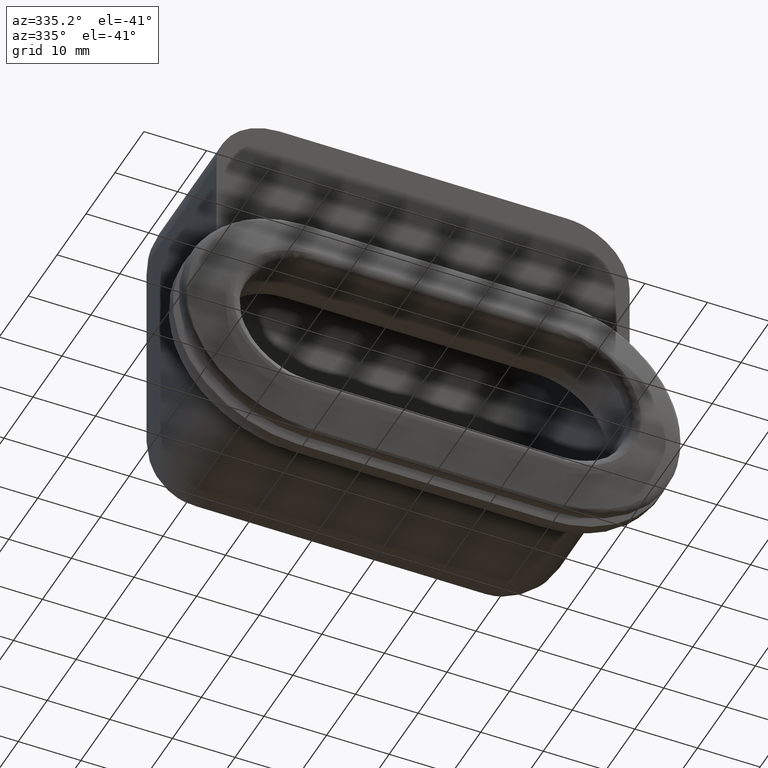
[diagram: clean part render]
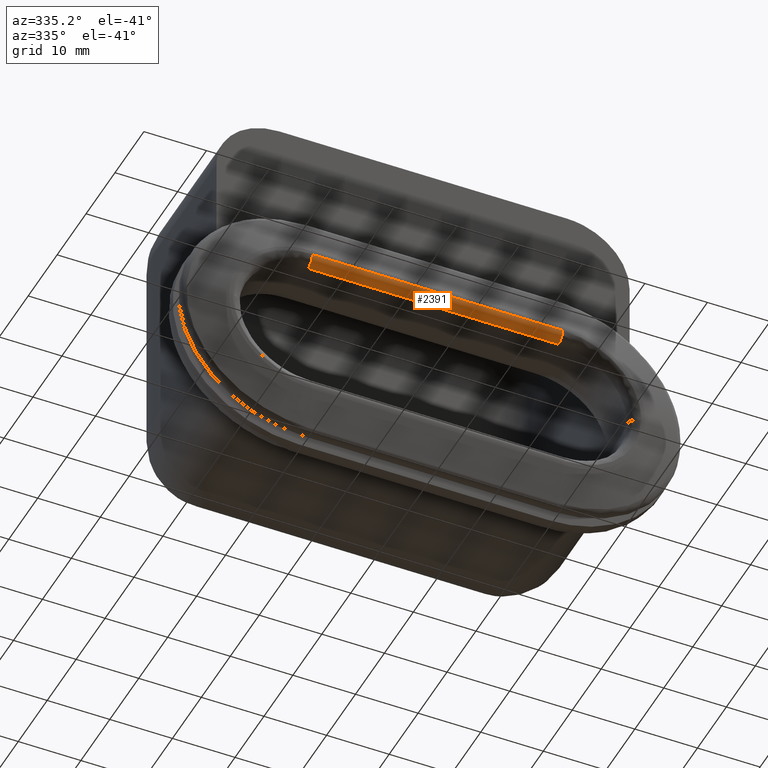
[diagram: same view with one face highlighted and labeled with its STEP entity id]
A machine part, auxiliary view. The second image highlights one B-rep face of the part: STEP entity #2391.
In plain terms, the highlighted face is a freeform B-spline surface patch.
Its self-contained STEP definition (entity closure, byte-faithful):
#2010=CARTESIAN_POINT('',(-20.0,1.500000000000000,11.0));
#2011=VERTEX_POINT('',#2010);
#2012=CARTESIAN_POINT('',(-20.0,0.0,12.500000000000000));
#2013=VERTEX_POINT('',#2012);
#2014=CARTESIAN_POINT('',(-20.0,1.500000000000000,11.0));
#2015=CARTESIAN_POINT('',(-19.999999999999996,0.0,11.000000000000002));
#2016=CARTESIAN_POINT('',(-20.0,0.0,12.500000000000000));
#2024=(BOUNDED_CURVE()B_SPLINE_CURVE(2,(#2014,#2015,#2016),.UNSPECIFIED.,.F.,.U.)CURVE()GEOMETRIC_REPRESENTATION_ITEM()QUASI_UNIFORM_CURVE()RATIONAL_B_SPLINE_CURVE((1.0,0.707106781186548,1.0))REPRESENTATION_ITEM(''));
#2025=EDGE_CURVE('',#2011,#2013,#2024,.T.);
#2345=CARTESIAN_POINT('',(21.0,0.000514012536664,12.539265422461810));
#2346=CARTESIAN_POINT('',(-21.024999999999999,0.000514012536664,12.539265422461810));
#2347=CARTESIAN_POINT('',(20.999999999999993,-0.042738390249391,10.887522799167924));
#2348=CARTESIAN_POINT('',(-21.024999999999995,-0.042738390249391,10.887522799167924));
#2349=CARTESIAN_POINT('',(21.000000000000004,1.605480113438977,11.003713280928787));
#2350=CARTESIAN_POINT('',(-21.024999999999999,1.605480113438977,11.003713280928787));
#2358=(BOUNDED_SURFACE()B_SPLINE_SURFACE(1,2,((#2345,#2347,#2349),(#2346,#2348,#2350)),.UNSPECIFIED.,.F.,.F.,.U.)B_SPLINE_SURFACE_WITH_KNOTS((2,2),(3,3),(0.0,42.025000000000013),(0.0,2.656713516132538),.UNSPECIFIED.)GEOMETRIC_REPRESENTATION_ITEM()RATIONAL_B_SPLINE_SURFACE(((1.0,0.670944223154768,0.996392648609106),(1.0,0.670944223154768,0.996392648609106)))REPRESENTATION_ITEM('')SURFACE());
#2359=CARTESIAN_POINT('',(20.0,1.500000000000000,11.0));
#2360=VERTEX_POINT('',#2359);
#2361=CARTESIAN_POINT('',(20.0,0.0,12.500000000000000));
#2362=VERTEX_POINT('',#2361);
#2363=CARTESIAN_POINT('',(20.0,1.500000000000000,11.0));
#2364=CARTESIAN_POINT('',(19.999999999999996,0.878679656440319,10.999999999999996));
#2365=CARTESIAN_POINT('',(20.0,0.439339828220144,11.439339828220159));
#2366=CARTESIAN_POINT('',(19.999999999999996,-5.399327E-014,11.878679656440346));
#2367=CARTESIAN_POINT('',(20.0,0.0,12.500000000000000));
#2375=(BOUNDED_CURVE()B_SPLINE_CURVE(2,(#2363,#2364,#2365,#2366,#2367),.UNSPECIFIED.,.F.,.U.)B_SPLINE_CURVE_WITH_KNOTS((3,2,3),(0.0,0.500000000000000,1.0),.UNSPECIFIED.)CURVE()GEOMETRIC_REPRESENTATION_ITEM()RATIONAL_B_SPLINE_CURVE((1.0,0.923879532511290,1.0,0.923879532511290,1.0))REPRESENTATION_ITEM(''));
#2376=EDGE_CURVE('',#2360,#2362,#2375,.T.);
#2377=ORIENTED_EDGE('',*,*,#2376,.T.);
#2378=CARTESIAN_POINT('',(-20.0,0.0,12.500000000000000));
#2379=CARTESIAN_POINT('',(20.0,0.0,12.500000000000000));
#2380=QUASI_UNIFORM_CURVE('',1,(#2378,#2379),.UNSPECIFIED.,.F.,.U.);
#2381=EDGE_CURVE('',#2013,#2362,#2380,.T.);
#2382=ORIENTED_EDGE('',*,*,#2381,.F.);
#2383=ORIENTED_EDGE('',*,*,#2025,.F.);
#2384=CARTESIAN_POINT('',(20.0,1.500000000000000,11.0));
#2385=CARTESIAN_POINT('',(-20.0,1.500000000000000,11.0));
#2386=QUASI_UNIFORM_CURVE('',1,(#2384,#2385),.UNSPECIFIED.,.F.,.U.);
#2387=EDGE_CURVE('',#2360,#2011,#2386,.T.);
#2388=ORIENTED_EDGE('',*,*,#2387,.F.);
#2389=EDGE_LOOP('',(#2377,#2382,#2383,#2388));
#2390=FACE_OUTER_BOUND('',#2389,.T.);
#2391=ADVANCED_FACE('',(#2390),#2358,.T.);